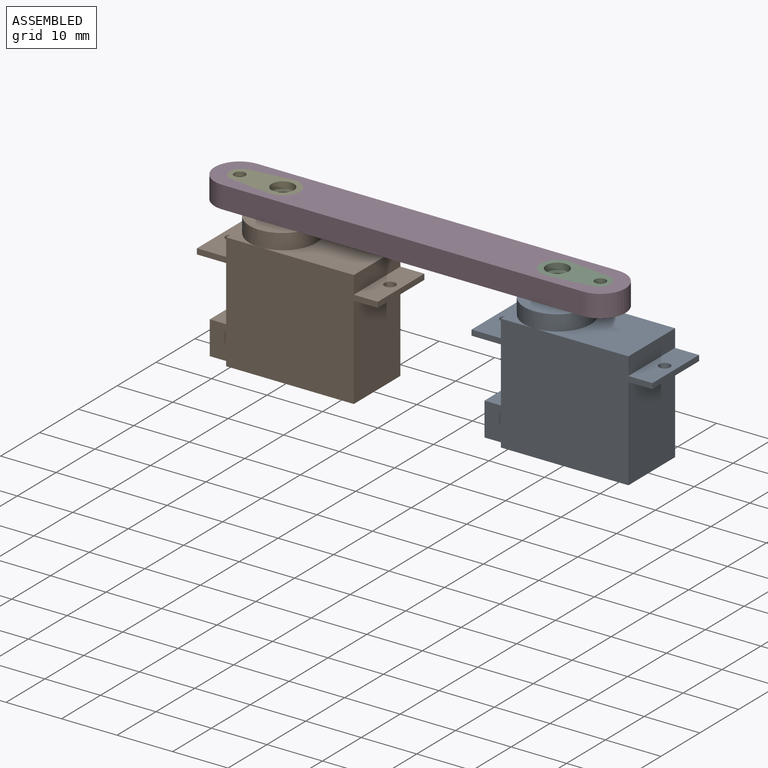
[diagram: assembled view]
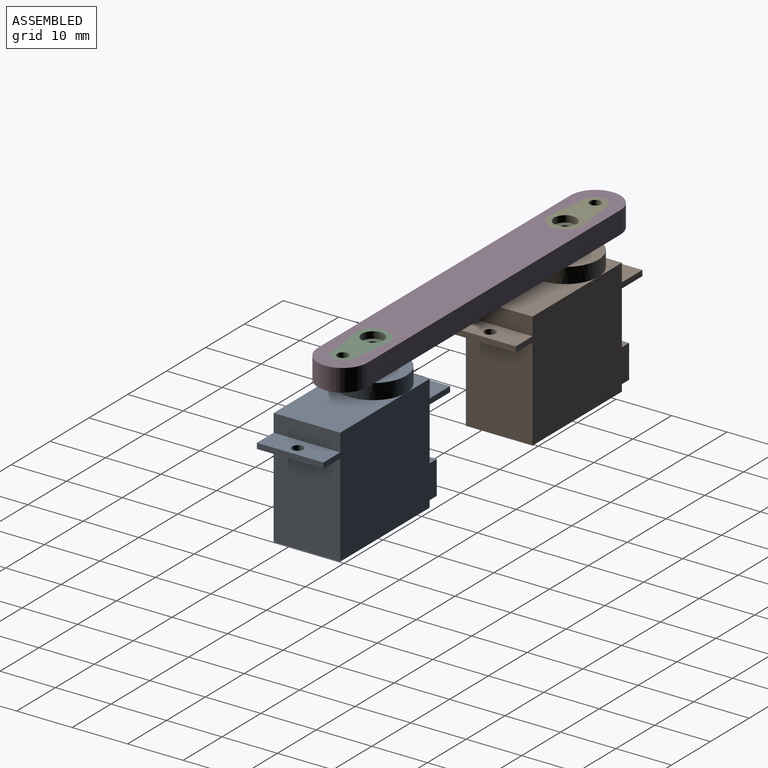
[diagram: assembled view, second angle]
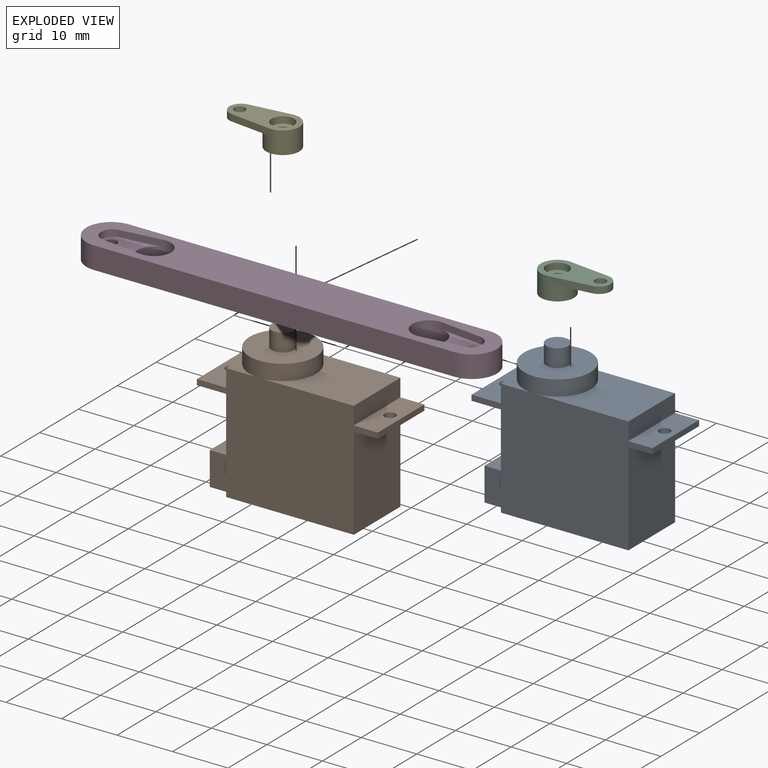
[diagram: exploded view]
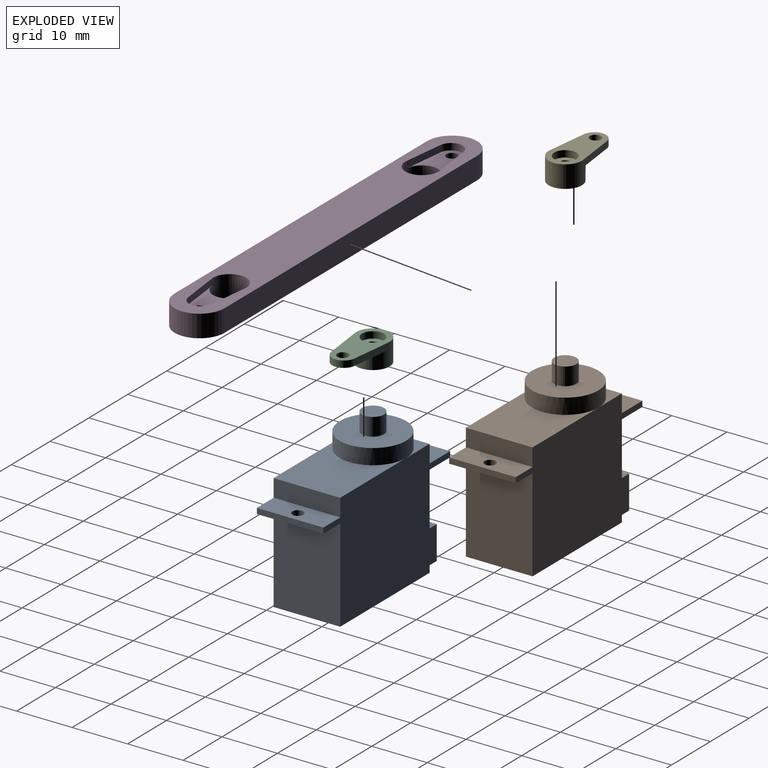
[diagram: exploded view, second angle]
ASSEMBLY  parts=5 mates=4
PART A: 26 faces, bbox 32.6x12x27 mm
  f0: plane 6x6mm, normal (0,0,1), area 7.7mm2, adj f2,f14,f16
  f1: plane 17x12mm, normal (0,0,1), area 147.5mm2, adj f12,f14,f15,f16
  f2: plane 12x3.2mm, normal (-1,0,0), area 38.4mm2, adj f0,f3,f13,f14,f15
  f3: plane 12x5.28mm, normal (0,0,1), area 60.2mm2, adj f2,f4,f14,f15,f21
  f4: plane 12x1mm, normal (-1,0,0), area 12mm2, adj f3,f5,f14,f15
  f5: plane 12x5.28mm, normal (0,0,-1), area 60.2mm2, adj f4,f6,f14,f15,f21
  f6: plane 16.8x12mm, normal (-1,0,0), area 147.6mm2, adj f5,f7,f14,f15,f22,f23,f24
  f7: plane 27x12mm, normal (0,0,-1), area 312mm2, adj f6,f8,f14,f15,f22,f24,f25
  f8: plane 16.8x12mm, normal (1,0,0), area 201.6mm2, adj f7,f9,f14,f15
  f9: plane 12x4.32mm, normal (0,0,-1), area 48.7mm2, adj f8,f10,f14,f15,f20
  f10: plane 12x1mm, normal (1,0,0), area 12mm2, adj f9,f11,f14,f15
  f11: plane 12x4.32mm, normal (0,0,1), area 48.7mm2, adj f10,f12,f14,f15,f20
  f12: plane 12x3.2mm, normal (1,0,0), area 38.4mm2, adj f1,f11,f14,f15
  f13: plane 6x6mm, normal (0,0,1), area 7.7mm2, adj f2,f15,f16
  f14: plane 32.6x21mm, normal (0,-1,0), area 492.6mm2, adj f0,f1,f2,f3,f4,f5,f6,f7
  f15: plane 32.6x21mm, normal (0,1,0), area 492.6mm2, adj f1,f2,f3,f4,f5,f6,f7,f8
  f16: cylinder r=6mm len=12mm, axis (0,0,-1), area 105.6mm2, adj f0,f1,f13,f17
  f17: plane 12x12mm, normal (0,0,1), area 100.5mm2, adj f16,f18
  f18: cylinder r=2mm len=4mm, axis (0,0,-1), area 40.2mm2, adj f17,f19
  f19: plane 4x4mm, normal (0,0,1), area 12.6mm2, adj f18
  f20: cylinder r=1mm len=2mm, axis (0,0,1), area 6.3mm2, adj f9,f11
  f21: cylinder r=1mm len=2mm, axis (0,0,1), area 6.3mm2, adj f3,f5
  f22: plane 6x4mm, normal (0,-1,0), area 24mm2, adj f6,f7,f23,f25
  f23: plane 9x4mm, normal (0,0,1), area 36mm2, adj f6,f22,f24,f25
  f24: plane 6x4mm, normal (0,1,0), area 24mm2, adj f6,f7,f23,f25
  f25: plane 9x6mm, normal (-1,0,0), area 54mm2, adj f7,f22,f23,f24
PART B: same geometry as A
PART C: 13 faces, bbox 12.6x6x4 mm
  f0: cylinder r=1mm len=2mm, axis (0,0,-1), area 1.9mm2, adj f10,f12
  f1: cylinder r=3mm len=6mm, axis (0,0,-1), area 65mm2, adj f2,f3,f4,f6,f7
  f2: plane 6x6mm, normal (0,0,1), area 16.9mm2, adj f1,f11
  f3: plane 12.6x6mm, normal (0,0,-1), area 43.9mm2, adj f1,f4,f5,f6,f8,f9
  f4: plane 7.39x1.2mm, normal (0.12,-0.99,0), area 8.9mm2, adj f1,f3,f5,f7
  f5: cylinder r=2.1mm len=4.17mm, axis (0,0,-1), area 7.3mm2, adj f3,f4,f6,f7
  f6: plane 7.39x1.2mm, normal (0.12,0.99,0), area 8.9mm2, adj f1,f3,f5,f7
  f7: plane 9.24x5.96mm, normal (0,0,1), area 28.2mm2, adj f1,f4,f5,f6,f8
  f8: cylinder r=1mm len=2mm, axis (0,0,-1), area 7.5mm2, adj f3,f7
  f9: cylinder r=2mm len=4mm, axis (0,0,-1), area 15.1mm2, adj f3,f10
  f10: plane 4x4mm, normal (0,0,-1), area 9.4mm2, adj f0,f9
  f11: cylinder r=1.9mm len=3.8mm, axis (0,0,1), area 29.8mm2, adj f2,f12
  f12: plane 3.8x3.8mm, normal (0,0,1), area 8.2mm2, adj f0,f11
PART D: 18 faces, bbox 74x9x4 mm
  f0: plane 74x9mm, normal (0,0,1), area 585.8mm2, adj f2,f3,f4,f5,f6,f7,f11,f16
  f1: plane 74x9mm, normal (0,0,-1), area 529.4mm2, adj f2,f3,f4,f6,f8,f9,f10,f11
  f2: plane 65x4mm, normal (0,-1,0), area 260mm2, adj f0,f1,f3,f6
  f3: cylinder r=4.5mm len=9mm, axis (0,0,-1), area 56.5mm2, adj f0,f1,f2,f4
  f4: plane 65x4mm, normal (0,1,0), area 260mm2, adj f0,f1,f3,f6
  f5: cylinder r=1mm len=2.8mm, axis (0,0,-1), area 17.6mm2, adj f0,f12
  f6: cylinder r=4.5mm len=9mm, axis (0,0,-1), area 56.5mm2, adj f0,f1,f2,f4
  f7: cylinder r=1mm len=2.8mm, axis (0,0,-1), area 17.6mm2, adj f0,f17
  f8: plane 7.39x1.2mm, normal (0.12,0.99,0), area 8.9mm2, adj f1,f9,f11,f12
  f9: cylinder r=2.1mm len=4.17mm, axis (0,0,-1), area 7.3mm2, adj f1,f8,f10,f12
  f10: plane 7.39x1.2mm, normal (0.12,-0.99,0), area 8.9mm2, adj f1,f9,f11,f12
  f11: cylinder r=3mm len=6mm, axis (0,0,-1), area 65mm2, adj f0,f1,f8,f10,f12
  f12: plane 9.25x5.97mm, normal (0,0,-1), area 28.2mm2, adj f5,f8,f9,f10,f11
  f13: plane 7.39x1.2mm, normal (-0.12,-0.99,0), area 8.9mm2, adj f1,f14,f16,f17
  f14: cylinder r=2.1mm len=4.17mm, axis (0,0,-1), area 7.3mm2, adj f1,f13,f15,f17
  f15: plane 7.39x1.2mm, normal (-0.12,0.99,0), area 8.9mm2, adj f1,f14,f16,f17
  f16: cylinder r=3mm len=6mm, axis (0,0,-1), area 65mm2, adj f0,f1,f13,f15,f17
  f17: plane 9.24x5.96mm, normal (0,0,-1), area 28.2mm2, adj f7,f13,f14,f15,f16
PART E: same geometry as C
PLACE A rot(axis=(0.58,0.8,0.16),0deg) t=(15.07,-32.96,-82.09)mm
PLACE B t=(-34.42,-32.96,-82.09)mm
PLACE C rot(axis=(-1,0,0),180deg) t=(12.62,-78.96,-53.59)mm
PLACE D rot(axis=(-1,0,0),180deg) t=(12.62,-38.96,-53.59)mm
PLACE E rot(axis=(0,-1,0),180deg) t=(-36.88,1.04,-53.59)mm
MATE parallel E.f4 <-> D.f10  axis (-0.12,-0.99,0) through (-40.94,-41.49,-54.19)mm
MATE parallel D.f15 <-> C.f4  axis (-0.12,-0.99,0) through (16.67,-36.43,-54.19)mm
MATE revolute E.f0 <-> B.f16  axis (0,0,-1) through (-36.88,-38.96,-55.09)mm
MATE revolute C.f0 <-> A.f16  axis (0,0,-1) through (12.62,-38.96,-55.09)mm
